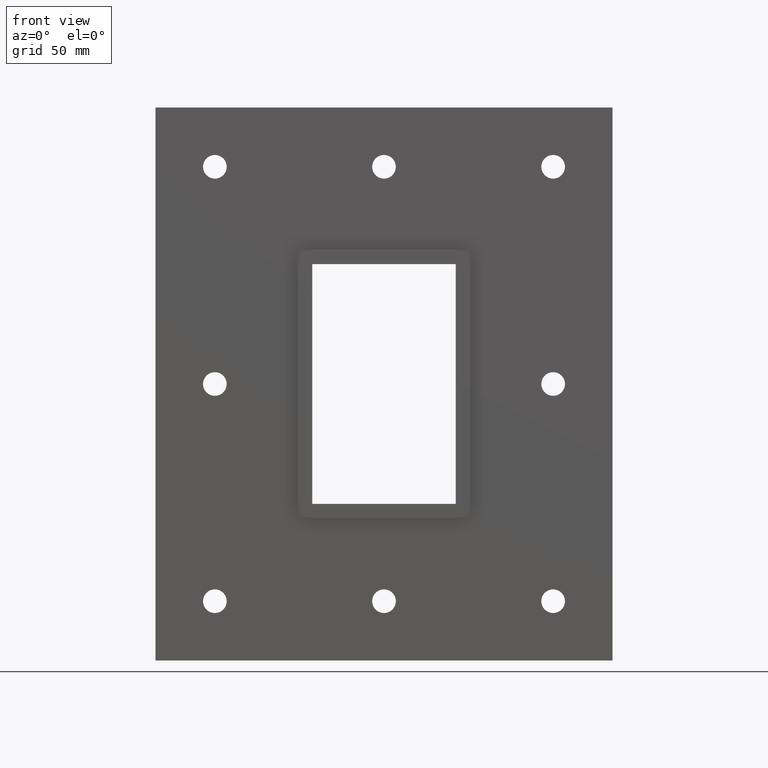
[diagram: clean part render]
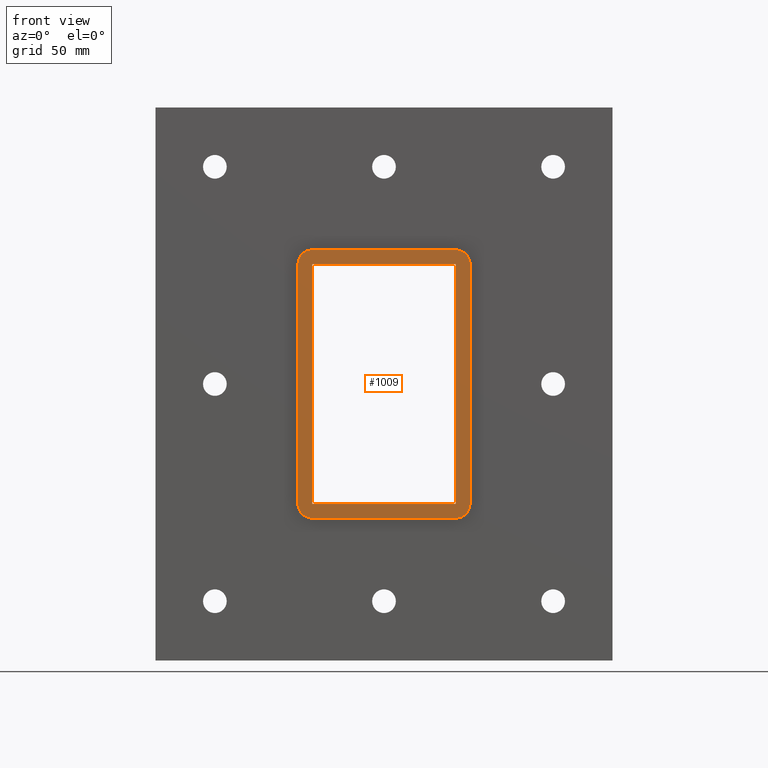
[diagram: same view with one face highlighted and labeled with its STEP entity id]
A machine part, front view. The second image highlights one B-rep face of the part: STEP entity #1009.
In plain terms, the highlighted planar face has unit normal (0, 1, 0).
Its self-contained STEP definition (entity closure, byte-faithful):
#633=CARTESIAN_POINT('',(-30.250000000000004,-3.0,-50.499999999999986));
#634=VERTEX_POINT('',#633);
#651=CARTESIAN_POINT('',(-30.250000000000004,-3.0,50.500000000000007));
#652=VERTEX_POINT('',#651);
#659=CARTESIAN_POINT('',(-30.250000000000004,-3.0,-50.499999999999986));
#660=DIRECTION('',(0.0,0.0,1.0));
#661=VECTOR('',#660,101.0);
#662=LINE('',#659,#661);
#663=EDGE_CURVE('',#634,#652,#662,.T.);
#674=CARTESIAN_POINT('',(30.25,-3.0,56.5));
#675=VERTEX_POINT('',#674);
#682=CARTESIAN_POINT('',(36.250000000000007,-3.0,50.500000000000007));
#683=VERTEX_POINT('',#682);
#684=CARTESIAN_POINT('',(30.250000000000004,-3.0,50.500000000000007));
#685=DIRECTION('',(0.0,1.0,0.0));
#686=DIRECTION('',(0.707106781186547,0.0,0.707106781186547));
#687=AXIS2_PLACEMENT_3D('',#684,#685,#686);
#688=CIRCLE('',#687,6.0);
#689=EDGE_CURVE('',#675,#683,#688,.T.);
#739=CARTESIAN_POINT('',(36.250000000000007,-3.0,-50.500000000000007));
#740=VERTEX_POINT('',#739);
#741=CARTESIAN_POINT('',(36.250000000000007,-3.0,-50.500000000000014));
#742=DIRECTION('',(0.0,0.0,1.0));
#743=VECTOR('',#742,101.00000000000001);
#744=LINE('',#741,#743);
#745=EDGE_CURVE('',#740,#683,#744,.T.);
#786=CARTESIAN_POINT('',(-30.250000000000004,-3.0,56.5));
#787=VERTEX_POINT('',#786);
#794=CARTESIAN_POINT('',(30.249999999999993,-3.0,56.5));
#795=DIRECTION('',(-1.0,0.0,0.0));
#796=VECTOR('',#795,60.5);
#797=LINE('',#794,#796);
#798=EDGE_CURVE('',#675,#787,#797,.T.);
#811=CARTESIAN_POINT('',(30.250000000000004,-3.0,-56.5));
#812=VERTEX_POINT('',#811);
#813=CARTESIAN_POINT('',(30.250000000000004,-3.0,-50.500000000000007));
#814=DIRECTION('',(0.0,1.0,0.0));
#815=DIRECTION('',(0.707106781186547,0.0,-0.707106781186547));
#816=AXIS2_PLACEMENT_3D('',#813,#814,#815);
#817=CIRCLE('',#816,6.0);
#818=EDGE_CURVE('',#740,#812,#817,.T.);
#860=CARTESIAN_POINT('',(-36.250000000000007,-3.0,50.500000000000007));
#861=VERTEX_POINT('',#860);
#868=CARTESIAN_POINT('',(-30.250000000000004,-3.0,50.500000000000007));
#869=DIRECTION('',(0.0,1.0,0.0));
#870=DIRECTION('',(-0.707106781186547,0.0,0.707106781186547));
#871=AXIS2_PLACEMENT_3D('',#868,#869,#870);
#872=CIRCLE('',#871,6.0);
#873=EDGE_CURVE('',#861,#787,#872,.T.);
#886=CARTESIAN_POINT('',(-30.25,-3.0,-56.5));
#887=VERTEX_POINT('',#886);
#888=CARTESIAN_POINT('',(-30.249999999999993,-3.0,-56.5));
#889=DIRECTION('',(1.0,0.0,0.0));
#890=VECTOR('',#889,60.5);
#891=LINE('',#888,#890);
#892=EDGE_CURVE('',#887,#812,#891,.T.);
#933=CARTESIAN_POINT('',(-36.250000000000007,-3.0,-50.500000000000007));
#934=VERTEX_POINT('',#933);
#941=CARTESIAN_POINT('',(-36.250000000000007,-3.0,50.500000000000014));
#942=DIRECTION('',(0.0,0.0,-1.0));
#943=VECTOR('',#942,101.00000000000001);
#944=LINE('',#941,#943);
#945=EDGE_CURVE('',#861,#934,#944,.T.);
#958=CARTESIAN_POINT('',(-30.250000000000004,-3.0,-50.500000000000007));
#959=DIRECTION('',(0.0,1.0,0.0));
#960=DIRECTION('',(-0.707106781186547,0.0,-0.707106781186547));
#961=AXIS2_PLACEMENT_3D('',#958,#959,#960);
#962=CIRCLE('',#961,6.0);
#963=EDGE_CURVE('',#887,#934,#962,.T.);
#969=CARTESIAN_POINT('',(0.0,-3.0,0.0));
#970=DIRECTION('',(0.0,1.0,0.0));
#971=DIRECTION('',(0.0,0.0,1.0));
#972=AXIS2_PLACEMENT_3D('',#969,#970,#971);
#973=PLANE('',#972);
#974=ORIENTED_EDGE('',*,*,#818,.F.);
#975=ORIENTED_EDGE('',*,*,#745,.T.);
#976=ORIENTED_EDGE('',*,*,#689,.F.);
#977=ORIENTED_EDGE('',*,*,#798,.T.);
#978=ORIENTED_EDGE('',*,*,#873,.F.);
#979=ORIENTED_EDGE('',*,*,#945,.T.);
#980=ORIENTED_EDGE('',*,*,#963,.F.);
#981=ORIENTED_EDGE('',*,*,#892,.T.);
#982=EDGE_LOOP('',(#974,#975,#976,#977,#978,#979,#980,#981));
#983=FACE_OUTER_BOUND('',#982,.T.);
#984=CARTESIAN_POINT('',(30.250000000000004,-3.0,50.500000000000007));
#985=VERTEX_POINT('',#984);
#986=CARTESIAN_POINT('',(30.250000000000004,-3.0,-50.499999999999986));
#987=VERTEX_POINT('',#986);
#988=CARTESIAN_POINT('',(30.250000000000004,-3.0,50.500000000000007));
#989=DIRECTION('',(0.0,0.0,-1.0));
#990=VECTOR('',#989,101.0);
#991=LINE('',#988,#990);
#992=EDGE_CURVE('',#985,#987,#991,.T.);
#993=ORIENTED_EDGE('',*,*,#992,.T.);
#994=CARTESIAN_POINT('',(30.250000000000004,-3.0,-50.499999999999986));
#995=DIRECTION('',(-1.0,0.0,0.0));
#996=VECTOR('',#995,60.500000000000014);
#997=LINE('',#994,#996);
#998=EDGE_CURVE('',#987,#634,#997,.T.);
#999=ORIENTED_EDGE('',*,*,#998,.T.);
#1000=ORIENTED_EDGE('',*,*,#663,.T.);
#1001=CARTESIAN_POINT('',(-30.250000000000004,-3.0,50.500000000000007));
#1002=DIRECTION('',(1.0,0.0,0.0));
#1003=VECTOR('',#1002,60.500000000000014);
#1004=LINE('',#1001,#1003);
#1005=EDGE_CURVE('',#652,#985,#1004,.T.);
#1006=ORIENTED_EDGE('',*,*,#1005,.T.);
#1007=EDGE_LOOP('',(#993,#999,#1000,#1006));
#1008=FACE_BOUND('',#1007,.T.);
#1009=ADVANCED_FACE('',(#983,#1008),#973,.F.);